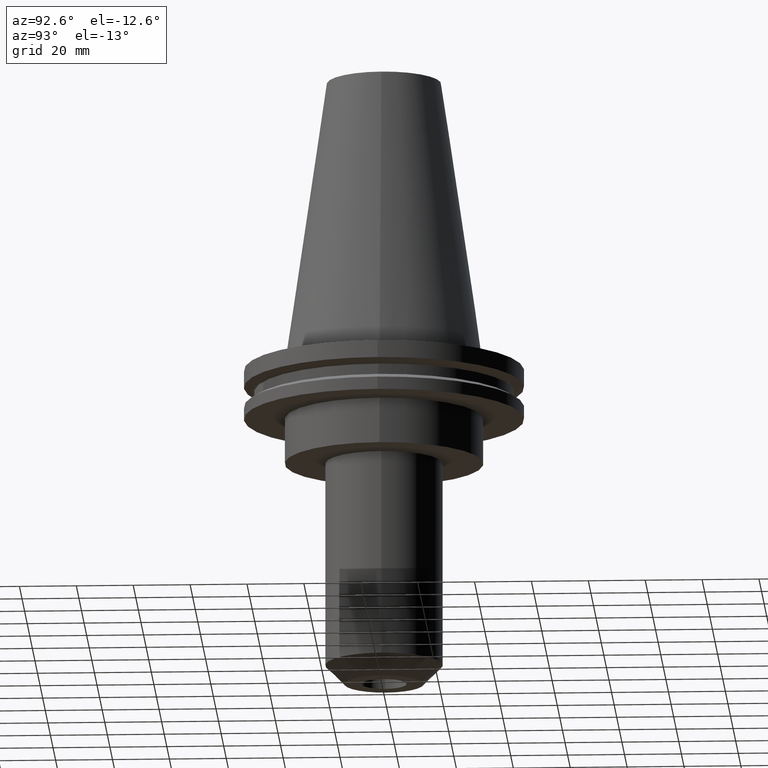
[diagram: clean part render]
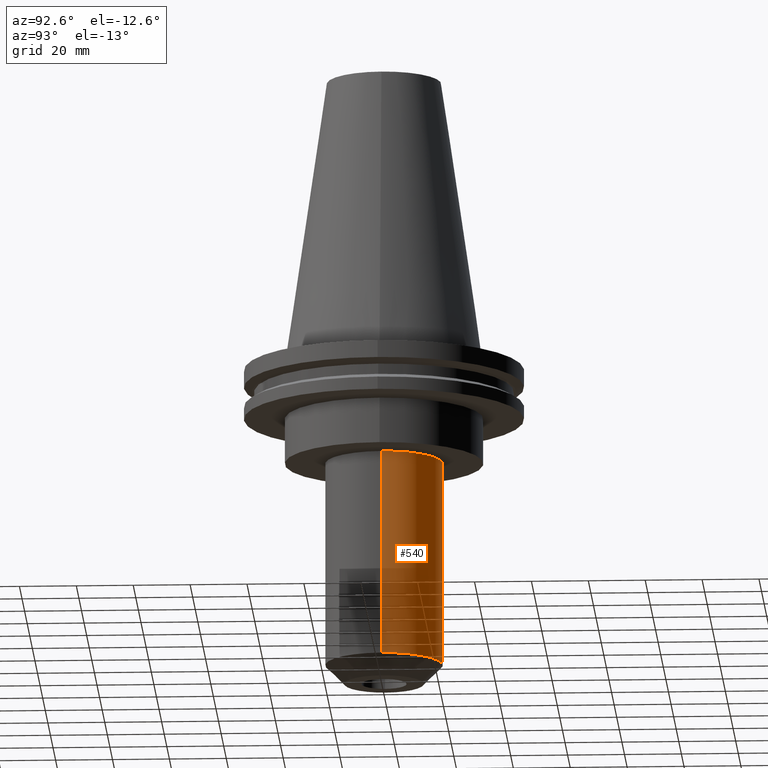
[diagram: same view with one face highlighted and labeled with its STEP entity id]
A machine part, auxiliary view. The second image highlights one B-rep face of the part: STEP entity #540.
In plain terms, the highlighted cylindrical surface (partial cylindrical patch) has radius 20.65 mm, axis along (-0, -0, 1).
Its self-contained STEP definition (entity closure, byte-faithful):
#15 = CARTESIAN_POINT ( 'NONE',  ( 20.64999999999999147, 0.000000000000000000, 0.000000000000000000 ) ) ;
#23 = CIRCLE ( 'NONE', #466, 20.64999999999999147 ) ;
#63 = AXIS2_PLACEMENT_3D ( 'NONE', #410, #743, #801 ) ;
#74 = DIRECTION ( 'NONE',  ( 1.000000000000000000, 0.000000000000000000, 0.000000000000000000 ) ) ;
#77 = VECTOR ( 'NONE', #275, 1000.000000000000000 ) ;
#98 = CARTESIAN_POINT ( 'NONE',  ( -20.64999999999999147, 2.528895640239283334E-15, 0.000000000000000000 ) ) ;
#104 = ORIENTED_EDGE ( 'NONE', *, *, #674, .T. ) ;
#145 = DIRECTION ( 'NONE',  ( 1.000000000000000000, 0.000000000000000000, 0.000000000000000000 ) ) ;
#162 = LINE ( 'NONE', #98, #560 ) ;
#208 = ORIENTED_EDGE ( 'NONE', *, *, #212, .T. ) ;
#212 = EDGE_CURVE ( 'NONE', #695, #358, #23, .T. ) ;
#275 = DIRECTION ( 'NONE',  ( -0.000000000000000000, -0.000000000000000000, 1.000000000000000000 ) ) ;
#297 = CARTESIAN_POINT ( 'NONE',  ( -20.64999999999999503, 2.528895640239283728E-15, -107.5999999999999943 ) ) ;
#342 = CARTESIAN_POINT ( 'NONE',  ( 0.000000000000000000, 0.000000000000000000, 0.000000000000000000 ) ) ;
#358 = VERTEX_POINT ( 'NONE', #363 ) ;
#363 = CARTESIAN_POINT ( 'NONE',  ( 20.64999999999999147, 0.000000000000000000, -35.04999999999999716 ) ) ;
#366 = ORIENTED_EDGE ( 'NONE', *, *, #582, .T. ) ;
#380 = CARTESIAN_POINT ( 'NONE',  ( -20.64999999999999147, 2.528895640239283334E-15, -35.04999999999999716 ) ) ;
#410 = CARTESIAN_POINT ( 'NONE',  ( 0.000000000000000000, 0.000000000000000000, -107.5999999999999943 ) ) ;
#466 = AXIS2_PLACEMENT_3D ( 'NONE', #538, #663, #74 ) ;
#475 = CIRCLE ( 'NONE', #63, 20.64999999999999503 ) ;
#491 = ORIENTED_EDGE ( 'NONE', *, *, #662, .F. ) ;
#538 = CARTESIAN_POINT ( 'NONE',  ( 0.000000000000000000, 0.000000000000000000, -35.04999999999999716 ) ) ;
#540 = ADVANCED_FACE ( 'NONE', ( #541 ), #739, .T. ) ;
#541 = FACE_OUTER_BOUND ( 'NONE', #558, .T. ) ;
#558 = EDGE_LOOP ( 'NONE', ( #366, #104, #208, #491 ) ) ;
#560 = VECTOR ( 'NONE', #615, 1000.000000000000000 ) ;
#571 = VERTEX_POINT ( 'NONE', #661 ) ;
#582 = EDGE_CURVE ( 'NONE', #571, #704, #475, .T. ) ;
#596 = LINE ( 'NONE', #15, #77 ) ;
#615 = DIRECTION ( 'NONE',  ( -0.000000000000000000, -0.000000000000000000, 1.000000000000000000 ) ) ;
#661 = CARTESIAN_POINT ( 'NONE',  ( 20.64999999999999503, 0.000000000000000000, -107.5999999999999943 ) ) ;
#662 = EDGE_CURVE ( 'NONE', #571, #358, #596, .T. ) ;
#663 = DIRECTION ( 'NONE',  ( 0.000000000000000000, 0.000000000000000000, -1.000000000000000000 ) ) ;
#667 = DIRECTION ( 'NONE',  ( -0.000000000000000000, -0.000000000000000000, 1.000000000000000000 ) ) ;
#674 = EDGE_CURVE ( 'NONE', #704, #695, #162, .T. ) ;
#695 = VERTEX_POINT ( 'NONE', #380 ) ;
#704 = VERTEX_POINT ( 'NONE', #297 ) ;
#739 = CYLINDRICAL_SURFACE ( 'NONE', #785, 20.64999999999999147 ) ;
#743 = DIRECTION ( 'NONE',  ( -0.000000000000000000, -0.000000000000000000, 1.000000000000000000 ) ) ;
#785 = AXIS2_PLACEMENT_3D ( 'NONE', #342, #667, #145 ) ;
#801 = DIRECTION ( 'NONE',  ( 1.000000000000000000, 0.000000000000000000, 0.000000000000000000 ) ) ;